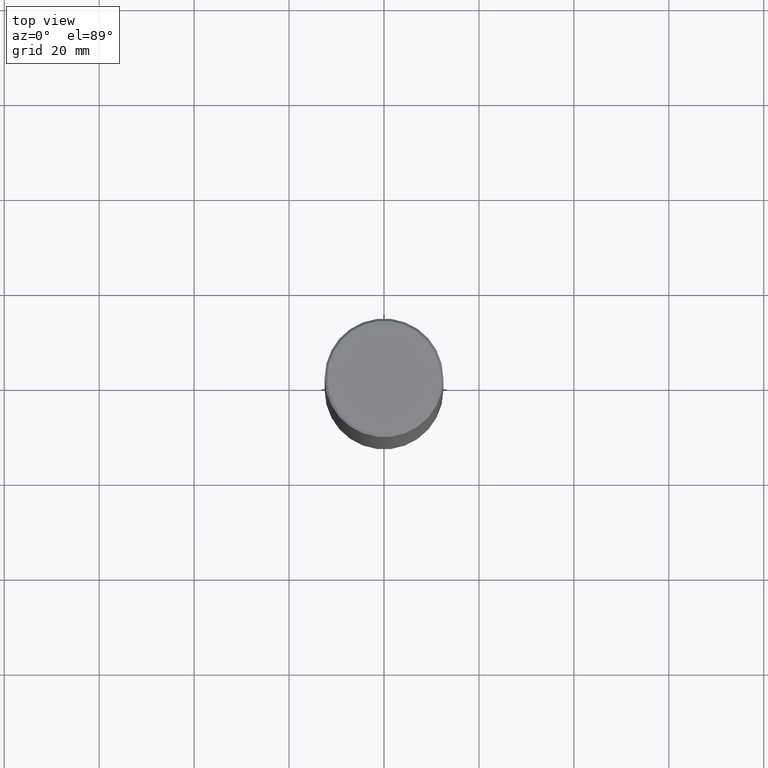
[diagram: clean part render]
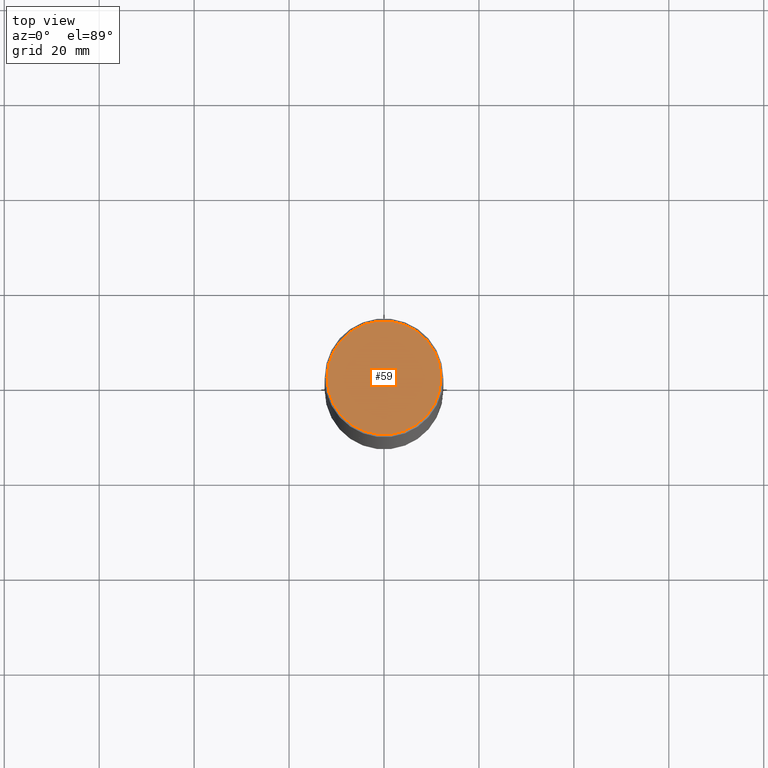
[diagram: same view with one face highlighted and labeled with its STEP entity id]
A machine part, top view. The second image highlights one B-rep face of the part: STEP entity #59.
In plain terms, the highlighted planar face has unit normal (0, -0, -1).
Its self-contained STEP definition (entity closure, byte-faithful):
#5 = DIRECTION ( 'NONE',  ( -2.445468806185136597E-29, 3.491481338843145583E-15, 1.000000000000000000 ) ) ;
#39 = ORIENTED_EDGE ( 'NONE', *, *, #79, .T. ) ;
#48 = DIRECTION ( 'NONE',  ( -1.000000000000000000, 6.982962677686265922E-15, -4.876176775795935793E-29 ) ) ;
#59 = ADVANCED_FACE ( 'NONE', ( #409 ), #115, .F. ) ;
#68 = CARTESIAN_POINT ( 'NONE',  ( -6.889419334612450925E-45, 9.836264924510951028E-31, 2.817218243466271259E-16 ) ) ;
#79 = EDGE_CURVE ( 'NONE', #240, #265, #291, .T. ) ;
#90 = CARTESIAN_POINT ( 'NONE',  ( -0.4721499999999997921, 3.331920641658001618E-15, 2.817218243466039531E-16 ) ) ;
#110 = AXIS2_PLACEMENT_3D ( 'NONE', #68, #5, #322 ) ;
#115 = PLANE ( 'NONE',  #152 ) ;
#152 = AXIS2_PLACEMENT_3D ( 'NONE', #235, #244, #48 ) ;
#166 = EDGE_LOOP ( 'NONE', ( #227, #39 ) ) ;
#172 = DIRECTION ( 'NONE',  ( -2.445468806185136597E-29, 3.491481338843145583E-15, 1.000000000000000000 ) ) ;
#180 = AXIS2_PLACEMENT_3D ( 'NONE', #239, #172, #303 ) ;
#227 = ORIENTED_EDGE ( 'NONE', *, *, #367, .T. ) ;
#235 = CARTESIAN_POINT ( 'NONE',  ( 3.297005828269569180E-15, 0.4721499999999997921, -1.507642001961476820E-15 ) ) ;
#239 = CARTESIAN_POINT ( 'NONE',  ( -6.889419334612450925E-45, 9.836264924510951028E-31, 2.817218243466271259E-16 ) ) ;
#240 = VERTEX_POINT ( 'NONE', #248 ) ;
#244 = DIRECTION ( 'NONE',  ( 2.438088387897960049E-29, -3.491481338843145188E-15, -1.000000000000000000 ) ) ;
#248 = CARTESIAN_POINT ( 'NONE',  ( 0.4721499999999997921, -3.342703923013974974E-15, 2.817218243466503973E-16 ) ) ;
#265 = VERTEX_POINT ( 'NONE', #90 ) ;
#291 = CIRCLE ( 'NONE', #180, 0.4721499999999997921 ) ;
#303 = DIRECTION ( 'NONE',  ( 1.000000000000000000, -6.982962677686265922E-15, 4.882029041999364017E-29 ) ) ;
#322 = DIRECTION ( 'NONE',  ( 1.000000000000000000, -6.982962677686265922E-15, 4.882029041999364017E-29 ) ) ;
#367 = EDGE_CURVE ( 'NONE', #265, #240, #401, .T. ) ;
#401 = CIRCLE ( 'NONE', #110, 0.4721499999999997921 ) ;
#409 = FACE_OUTER_BOUND ( 'NONE', #166, .T. ) ;